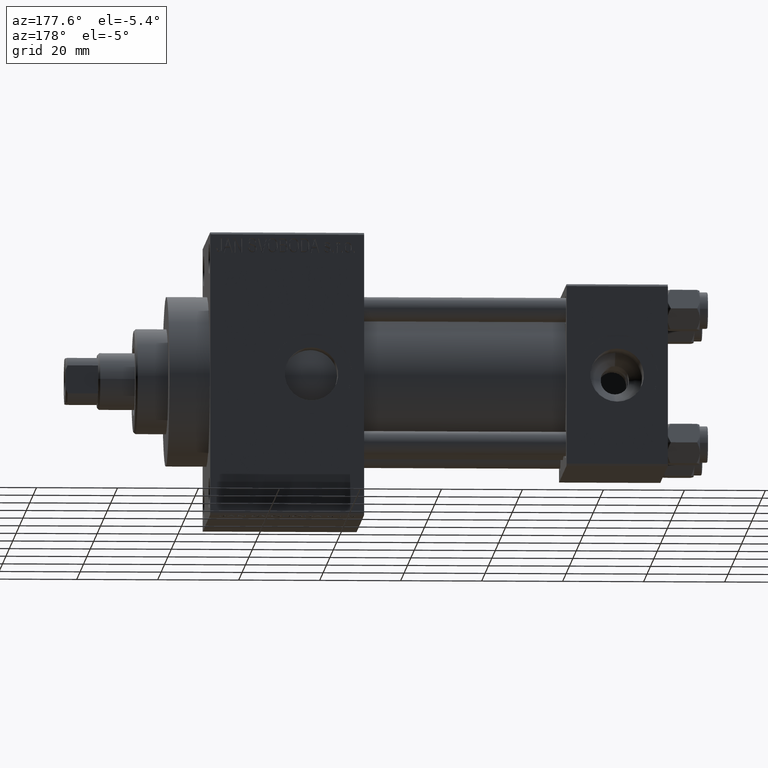
[diagram: clean part render]
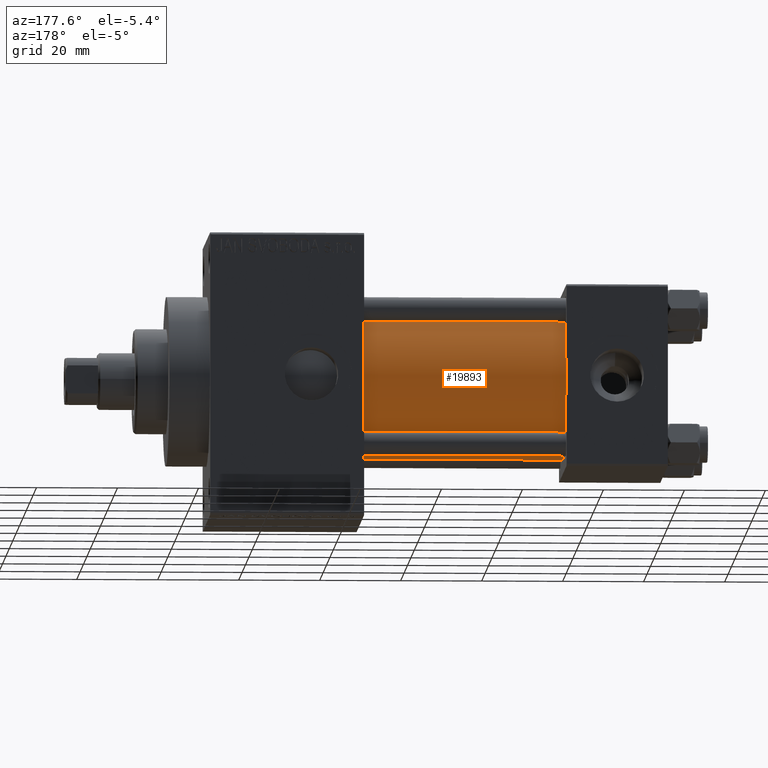
[diagram: same view with one face highlighted and labeled with its STEP entity id]
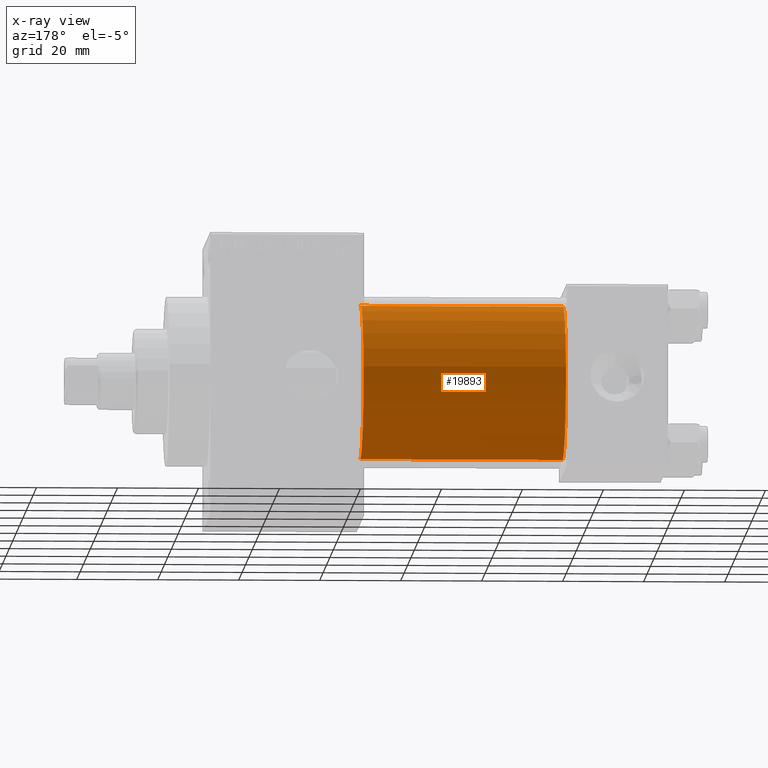
[diagram: x-ray of the same camera — body ghosted, the highlighted face saturated]
A machine part, auxiliary view. The second image highlights one B-rep face of the part: STEP entity #19893.
The next image is the same camera in x-ray: the body ghosted, the highlighted face saturated — about 0% of this face is hidden behind the body in this view.
In plain terms, the highlighted cylindrical surface (partial cylindrical patch) has radius 19 mm, axis along (-1, -0, -0).
Its self-contained STEP definition (entity closure, byte-faithful):
#446 = CYLINDRICAL_SURFACE ( 'NONE', #20060, 19.00000000000000000 ) ;
#1250 = VERTEX_POINT ( 'NONE', #35492 ) ;
#4544 = EDGE_LOOP ( 'NONE', ( #14313, #20353, #36713, #7574 ) ) ;
#5799 = VERTEX_POINT ( 'NONE', #8412 ) ;
#6496 = DIRECTION ( 'NONE',  ( -1.000000000000000000, -0.000000000000000000, -0.000000000000000000 ) ) ;
#7574 = ORIENTED_EDGE ( 'NONE', *, *, #26652, .F. ) ;
#8412 = CARTESIAN_POINT ( 'NONE',  ( 75.00000000000001421, -2.602085213965210642E-15, 19.00000000000000000 ) ) ;
#9034 = DIRECTION ( 'NONE',  ( 0.000000000000000000, 0.000000000000000000, 1.000000000000000000 ) ) ;
#9751 = EDGE_CURVE ( 'NONE', #33592, #1250, #23966, .T. ) ;
#10026 = CARTESIAN_POINT ( 'NONE',  ( 75.00000000000001421, -2.602085213965210642E-15, 19.00000000000000000 ) ) ;
#12139 = VECTOR ( 'NONE', #14245, 1000.000000000000000 ) ;
#14245 = DIRECTION ( 'NONE',  ( -1.000000000000000000, -0.000000000000000000, -0.000000000000000000 ) ) ;
#14313 = ORIENTED_EDGE ( 'NONE', *, *, #27436, .F. ) ;
#16237 = CARTESIAN_POINT ( 'NONE',  ( 25.00000000000000000, -2.602085213965210642E-15, 0.000000000000000000 ) ) ;
#19419 = VERTEX_POINT ( 'NONE', #21923 ) ;
#19893 = ADVANCED_FACE ( 'NONE', ( #38425 ), #446, .T. ) ;
#20060 = AXIS2_PLACEMENT_3D ( 'NONE', #29325, #6496, #33529 ) ;
#20353 = ORIENTED_EDGE ( 'NONE', *, *, #9751, .T. ) ;
#21923 = CARTESIAN_POINT ( 'NONE',  ( 25.00000000000000000, -2.602085213965210642E-15, 19.00000000000000000 ) ) ;
#23195 = DIRECTION ( 'NONE',  ( 0.000000000000000000, 0.000000000000000000, -1.000000000000000000 ) ) ;
#23966 = LINE ( 'NONE', #32168, #26967 ) ;
#26652 = EDGE_CURVE ( 'NONE', #5799, #19419, #41032, .T. ) ;
#26923 = CARTESIAN_POINT ( 'NONE',  ( 75.00000000000001421, -2.602085213965210642E-15, 0.000000000000000000 ) ) ;
#26953 = CARTESIAN_POINT ( 'NONE',  ( 75.00000000000001421, -2.752562955852396712E-16, -19.00000000000000000 ) ) ;
#26967 = VECTOR ( 'NONE', #39132, 1000.000000000000000 ) ;
#27436 = EDGE_CURVE ( 'NONE', #33592, #5799, #45440, .T. ) ;
#28442 = EDGE_CURVE ( 'NONE', #1250, #19419, #35876, .T. ) ;
#29325 = CARTESIAN_POINT ( 'NONE',  ( 75.00000000000001421, -2.602085213965210642E-15, 0.000000000000000000 ) ) ;
#30910 = DIRECTION ( 'NONE',  ( 1.000000000000000000, 0.000000000000000000, 0.000000000000000000 ) ) ;
#31049 = AXIS2_PLACEMENT_3D ( 'NONE', #26923, #30910, #23195 ) ;
#32168 = CARTESIAN_POINT ( 'NONE',  ( 75.00000000000001421, -2.752562955852396712E-16, -19.00000000000000000 ) ) ;
#33529 = DIRECTION ( 'NONE',  ( 0.000000000000000000, 0.000000000000000000, 1.000000000000000000 ) ) ;
#33592 = VERTEX_POINT ( 'NONE', #26953 ) ;
#35492 = CARTESIAN_POINT ( 'NONE',  ( 25.00000000000000000, -2.752562955852396712E-16, -19.00000000000000000 ) ) ;
#35876 = CIRCLE ( 'NONE', #36665, 19.00000000000000000 ) ;
#36665 = AXIS2_PLACEMENT_3D ( 'NONE', #16237, #43039, #9034 ) ;
#36713 = ORIENTED_EDGE ( 'NONE', *, *, #28442, .T. ) ;
#38425 = FACE_OUTER_BOUND ( 'NONE', #4544, .T. ) ;
#39132 = DIRECTION ( 'NONE',  ( -1.000000000000000000, -0.000000000000000000, -0.000000000000000000 ) ) ;
#41032 = LINE ( 'NONE', #10026, #12139 ) ;
#43039 = DIRECTION ( 'NONE',  ( 1.000000000000000000, -0.000000000000000000, 0.000000000000000000 ) ) ;
#45440 = CIRCLE ( 'NONE', #31049, 19.00000000000000000 ) ;